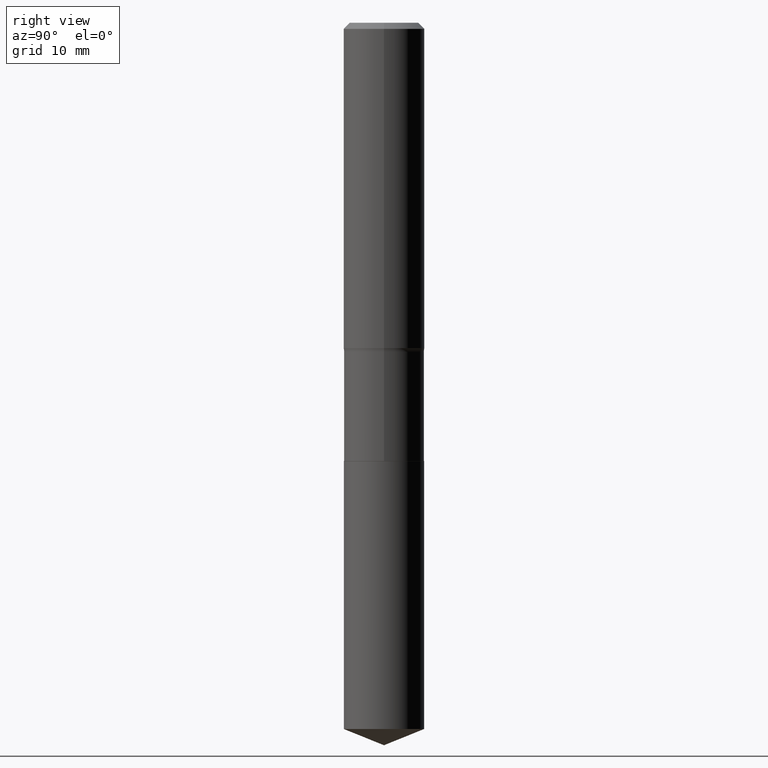
[diagram: clean part render]
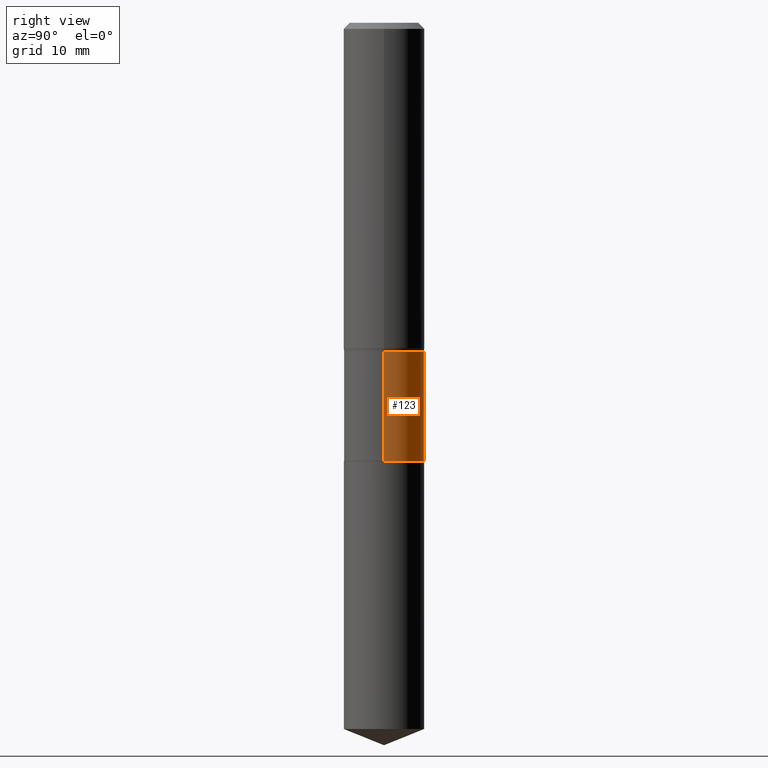
[diagram: same view with one face highlighted and labeled with its STEP entity id]
A machine part, right view. The second image highlights one B-rep face of the part: STEP entity #123.
In plain terms, the highlighted cylindrical surface (partial cylindrical patch) has radius 4.9505 mm, axis along (-0, 0, 1).
Its self-contained STEP definition (entity closure, byte-faithful):
#9 = VECTOR ( 'NONE', #236, 39.37007874015748143 ) ;
#32 = DIRECTION ( 'NONE',  ( -2.445468806185136877E-29, 3.491481338843145188E-15, 1.000000000000000000 ) ) ;
#62 = ORIENTED_EDGE ( 'NONE', *, *, #190, .F. ) ;
#75 = CIRCLE ( 'NONE', #443, 0.1948999999999999899 ) ;
#90 = ORIENTED_EDGE ( 'NONE', *, *, #419, .F. ) ;
#92 = CARTESIAN_POINT ( 'NONE',  ( 0.1948999999999999344, -1.360979425881052894E-15, 9.503668536026277414E-30 ) ) ;
#106 = EDGE_CURVE ( 'NONE', #237, #266, #379, .T. ) ;
#116 = DIRECTION ( 'NONE',  ( -2.445468806185136597E-29, 3.491481338843145583E-15, 1.000000000000000000 ) ) ;
#123 = ADVANCED_FACE ( 'NONE', ( #186 ), #289, .T. ) ;
#136 = VERTEX_POINT ( 'NONE', #221 ) ;
#139 = DIRECTION ( 'NONE',  ( 1.000000000000000000, -6.982962677686266711E-15, 4.876176775795936914E-29 ) ) ;
#150 = CARTESIAN_POINT ( 'NONE',  ( 3.900522745865292334E-29, -5.568912735454817265E-15, -1.594999999999999751 ) ) ;
#153 = CARTESIAN_POINT ( 'NONE',  ( -0.1948999999999999067, -5.110005794519583264E-15, -1.594999999999999751 ) ) ;
#172 = ORIENTED_EDGE ( 'NONE', *, *, #346, .T. ) ;
#186 = FACE_OUTER_BOUND ( 'NONE', #326, .T. ) ;
#190 = EDGE_CURVE ( 'NONE', #466, #266, #283, .T. ) ;
#221 = CARTESIAN_POINT ( 'NONE',  ( 0.1948999999999999899, -8.781773863458275496E-15, -2.125399999999999956 ) ) ;
#229 = DIRECTION ( 'NONE',  ( -2.445468806185136597E-29, 3.491481338843145583E-15, 1.000000000000000000 ) ) ;
#236 = DIRECTION ( 'NONE',  ( -2.445468806185136877E-29, 3.491481338843145188E-15, 1.000000000000000000 ) ) ;
#237 = VERTEX_POINT ( 'NONE', #345 ) ;
#242 = ORIENTED_EDGE ( 'NONE', *, *, #106, .T. ) ;
#250 = VECTOR ( 'NONE', #32, 39.37007874015748143 ) ;
#266 = VERTEX_POINT ( 'NONE', #153 ) ;
#271 = DIRECTION ( 'NONE',  ( 1.000000000000000000, -6.982962677686267499E-15, 0.000000000000000000 ) ) ;
#281 = CARTESIAN_POINT ( 'NONE',  ( 0.1948999999999999067, -6.929892161335869568E-15, -1.594999999999999751 ) ) ;
#283 = CIRCLE ( 'NONE', #347, 0.1948999999999999067 ) ;
#288 = CARTESIAN_POINT ( 'NONE',  ( -0.1948999999999999344, 1.384847791996434796E-15, -9.587004490906808522E-30 ) ) ;
#289 = CYLINDRICAL_SURFACE ( 'NONE', #355, 0.1948999999999999344 ) ;
#303 = DIRECTION ( 'NONE',  ( 1.000000000000000000, -6.982962677686269866E-15, 0.000000000000000000 ) ) ;
#326 = EDGE_LOOP ( 'NONE', ( #172, #242, #62, #90 ) ) ;
#345 = CARTESIAN_POINT ( 'NONE',  ( -0.1948999999999999899, -5.110005794519583264E-15, -2.125399999999999956 ) ) ;
#346 = EDGE_CURVE ( 'NONE', #136, #237, #75, .T. ) ;
#347 = AXIS2_PLACEMENT_3D ( 'NONE', #150, #229, #271 ) ;
#355 = AXIS2_PLACEMENT_3D ( 'NONE', #410, #439, #139 ) ;
#379 = LINE ( 'NONE', #288, #250 ) ;
#410 = CARTESIAN_POINT ( 'NONE',  ( 0.000000000000000000, 0.000000000000000000, 0.000000000000000000 ) ) ;
#419 = EDGE_CURVE ( 'NONE', #136, #466, #468, .T. ) ;
#439 = DIRECTION ( 'NONE',  ( -2.445468806185136597E-29, 3.491481338843145583E-15, 1.000000000000000000 ) ) ;
#443 = AXIS2_PLACEMENT_3D ( 'NONE', #450, #116, #303 ) ;
#450 = CARTESIAN_POINT ( 'NONE',  ( 5.197599400665889285E-29, -7.420794437577220826E-15, -2.125399999999999956 ) ) ;
#466 = VERTEX_POINT ( 'NONE', #281 ) ;
#468 = LINE ( 'NONE', #92, #9 ) ;